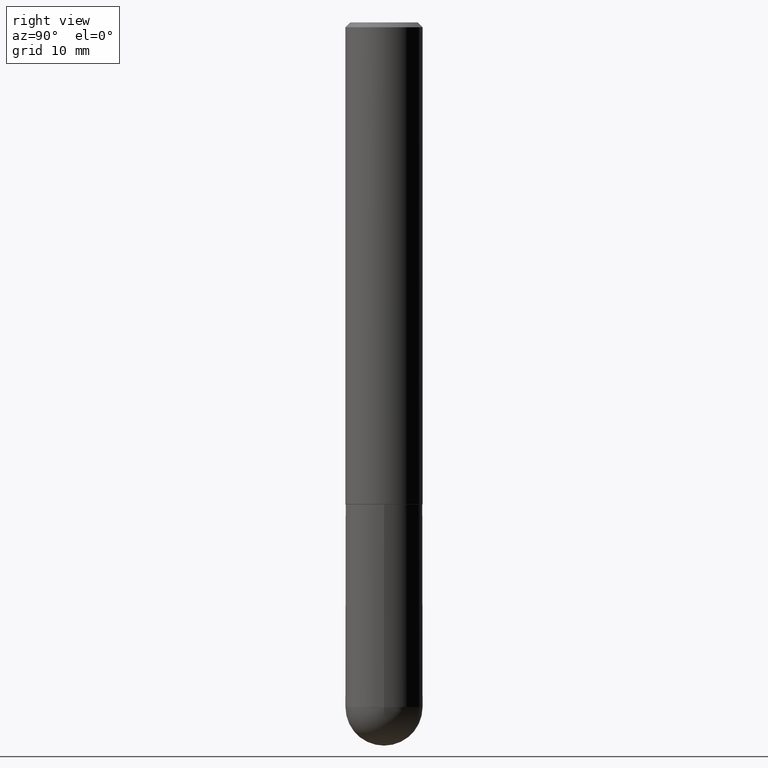
[diagram: clean part render]
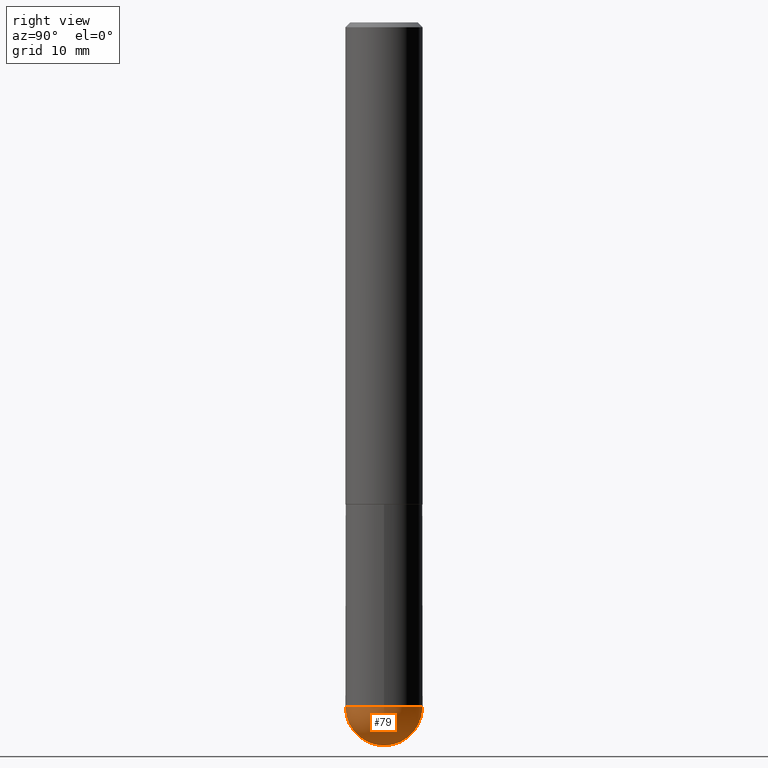
[diagram: same view with one face highlighted and labeled with its STEP entity id]
A machine part, right view. The second image highlights one B-rep face of the part: STEP entity #79.
In plain terms, the highlighted spherical surface has radius 4.0005 mm.
Its self-contained STEP definition (entity closure, byte-faithful):
#2 = EDGE_LOOP ( 'NONE', ( #104, #300, #126, #394 ) ) ;
#5 = CARTESIAN_POINT ( 'NONE',  ( 6.896594947516873652E-29, -1.077418437193280573E-14, -2.952799999999999869 ) ) ;
#8 = EDGE_CURVE ( 'NONE', #360, #367, #322, .T. ) ;
#11 = DIRECTION ( 'NONE',  ( 1.000000000000000000, -6.982962677686265922E-15, 4.883557194083112340E-29 ) ) ;
#24 = DIRECTION ( 'NONE',  ( -7.105427357601000281E-15, -1.000000000000000000, 0.000000000000000000 ) ) ;
#51 = DIRECTION ( 'NONE',  ( -1.000000000000000000, 7.105427357601001070E-15, -4.926315508542082329E-29 ) ) ;
#60 = AXIS2_PLACEMENT_3D ( 'NONE', #279, #177, #148 ) ;
#68 = CARTESIAN_POINT ( 'NONE',  ( 0.1575000000000000011, -9.416176022726072770E-15, -2.795299999999999674 ) ) ;
#77 = AXIS2_PLACEMENT_3D ( 'NONE', #374, #218, #393 ) ;
#79 = ADVANCED_FACE ( 'NONE', ( #268 ), #275, .T. ) ;
#100 = CIRCLE ( 'NONE', #265, 0.1575000000000000011 ) ;
#104 = ORIENTED_EDGE ( 'NONE', *, *, #8, .F. ) ;
#126 = ORIENTED_EDGE ( 'NONE', *, *, #175, .F. ) ;
#128 = VERTEX_POINT ( 'NONE', #205 ) ;
#148 = DIRECTION ( 'NONE',  ( 1.000000000000000000, -6.982962677686261977E-15, 0.000000000000000000 ) ) ;
#152 = AXIS2_PLACEMENT_3D ( 'NONE', #295, #11, #311 ) ;
#165 = CARTESIAN_POINT ( 'NONE',  ( 6.835818953929311707E-29, -9.759737786468243605E-15, -2.795299999999999674 ) ) ;
#171 = CIRCLE ( 'NONE', #60, 0.1575000000000000011 ) ;
#175 = EDGE_CURVE ( 'NONE', #351, #128, #100, .T. ) ;
#177 = DIRECTION ( 'NONE',  ( -2.445468806185136597E-29, 3.491481338843145583E-15, 1.000000000000000000 ) ) ;
#192 = CARTESIAN_POINT ( 'NONE',  ( -1.119104808822091931E-15, -0.1575000000000101319, -2.795299999999998786 ) ) ;
#199 = EDGE_CURVE ( 'NONE', #360, #128, #366, .T. ) ;
#205 = CARTESIAN_POINT ( 'NONE',  ( 1.099816621735654731E-15, 0.1574999999999901201, -2.795300000000000118 ) ) ;
#218 = DIRECTION ( 'NONE',  ( -1.000000000000000000, 6.982962677686265922E-15, -4.883557194083112901E-29 ) ) ;
#234 = DIRECTION ( 'NONE',  ( -2.445468806185136597E-29, 3.491481338843145583E-15, 1.000000000000000000 ) ) ;
#262 = DIRECTION ( 'NONE',  ( 1.000000000000000000, -6.982962677686261977E-15, 0.000000000000000000 ) ) ;
#265 = AXIS2_PLACEMENT_3D ( 'NONE', #165, #234, #262 ) ;
#268 = FACE_OUTER_BOUND ( 'NONE', #2, .T. ) ;
#270 = EDGE_CURVE ( 'NONE', #367, #351, #171, .T. ) ;
#271 = CARTESIAN_POINT ( 'NONE',  ( 6.504699176015425459E-29, -1.023392015460829390E-14, -2.795299999999999674 ) ) ;
#275 = SPHERICAL_SURFACE ( 'NONE', #77, 0.1575000000000003064 ) ;
#279 = CARTESIAN_POINT ( 'NONE',  ( 6.835818953929311707E-29, -9.759737786468243605E-15, -2.795299999999999674 ) ) ;
#295 = CARTESIAN_POINT ( 'NONE',  ( 6.504699176015425459E-29, -1.023392015460829390E-14, -2.795299999999999674 ) ) ;
#300 = ORIENTED_EDGE ( 'NONE', *, *, #199, .T. ) ;
#311 = DIRECTION ( 'NONE',  ( 6.982962677686265133E-15, 1.000000000000000000, 0.000000000000000000 ) ) ;
#322 = CIRCLE ( 'NONE', #408, 0.1575000000000003064 ) ;
#351 = VERTEX_POINT ( 'NONE', #68 ) ;
#360 = VERTEX_POINT ( 'NONE', #5 ) ;
#366 = CIRCLE ( 'NONE', #152, 0.1575000000000003064 ) ;
#367 = VERTEX_POINT ( 'NONE', #192 ) ;
#374 = CARTESIAN_POINT ( 'NONE',  ( 6.504699176015425459E-29, -1.023392015460829390E-14, -2.795299999999999674 ) ) ;
#393 = DIRECTION ( 'NONE',  ( 6.982962677686265922E-15, 1.000000000000000000, -3.469013325287946588E-15 ) ) ;
#394 = ORIENTED_EDGE ( 'NONE', *, *, #270, .F. ) ;
#408 = AXIS2_PLACEMENT_3D ( 'NONE', #271, #51, #24 ) ;